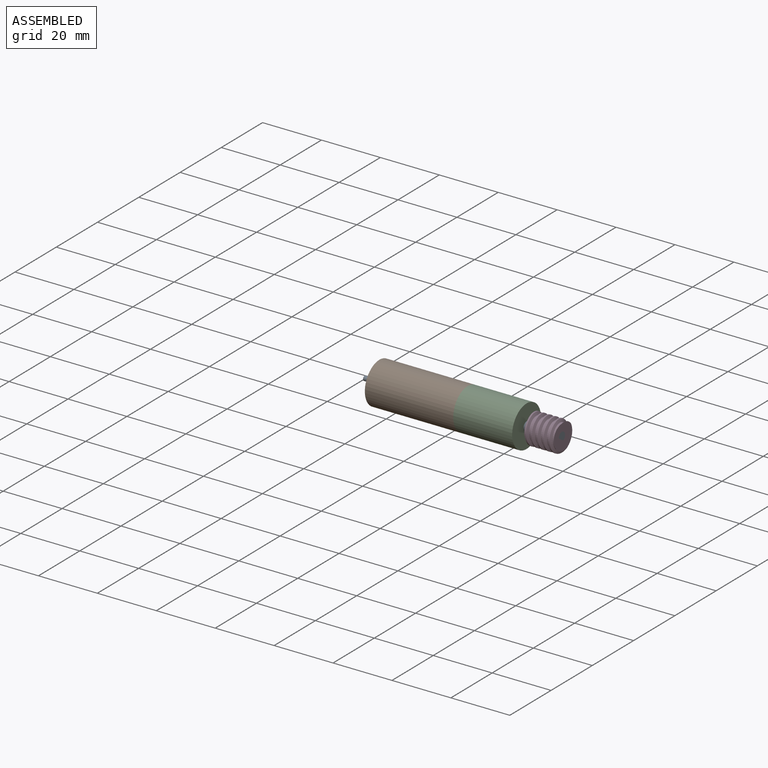
[diagram: assembled view]
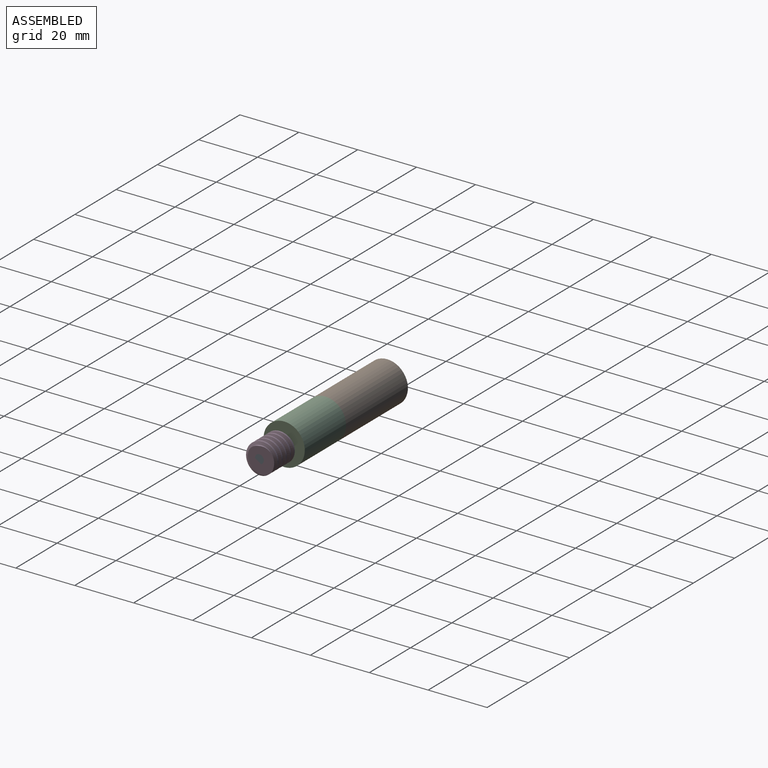
[diagram: assembled view, second angle]
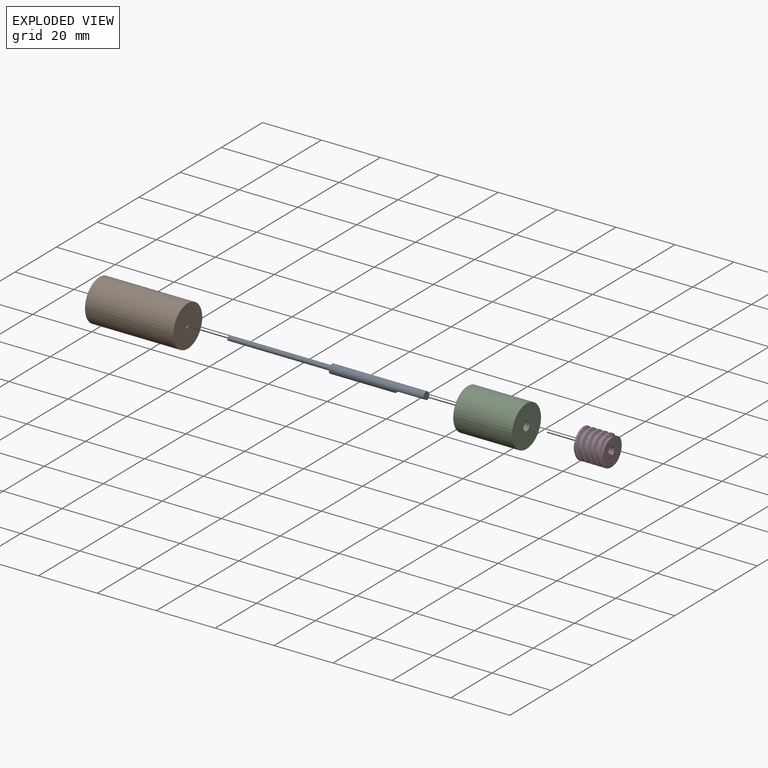
[diagram: exploded view]
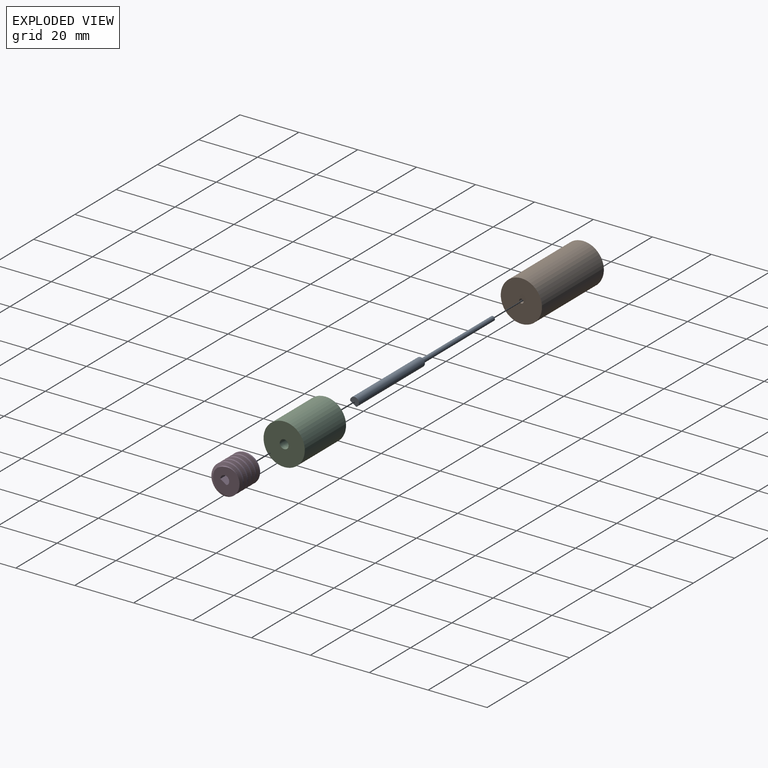
[diagram: exploded view, second angle]
ASSEMBLY  parts=4 mates=3
PART A: 7 faces, bbox 67x3x3 mm
  f0: cylinder r=0.75mm len=35mm, axis (1,0,0), area 164.9mm2, adj f1,f4
  f1: plane 1.5x1.5mm, normal (-1,0,0), area 1.8mm2, adj f0
  f2: cylinder r=1.5mm len=32mm, axis (-1,0,0), area 272.3mm2, adj f3,f4,f5,f6
  f3: plane 3x2.34mm, normal (1,0,0), area 5.9mm2, adj f2,f5
  f4: plane 3x3mm, normal (-1,0,0), area 5.3mm2, adj f0,f2
  f5: plane 10x2.49mm, normal (0,0,1), area 24.9mm2, adj f2,f3,f6
  f6: plane 2.49x0.66mm, normal (1,0,0), area 1.2mm2, adj f2,f5
PART B: 4 faces, bbox 30x14x14 mm
  f0: cylinder r=7mm len=30mm, axis (1,0,0), area 1319.5mm2, adj f1,f2
  f1: plane 14x14mm, normal (-1,0,0), area 152.2mm2, adj f0,f3
  f2: plane 14x14mm, normal (1,0,0), area 152.2mm2, adj f0,f3
  f3: cylinder r=0.75mm len=30mm, axis (1,0,0), area 141.4mm2, adj f1,f2
PART C: 4 faces, bbox 20x14x14 mm
  f0: cylinder r=7mm len=20mm, axis (-1,0,0), area 879.6mm2, adj f1,f2
  f1: plane 14x14mm, normal (1,0,0), area 146.9mm2, adj f0,f3
  f2: plane 14x14mm, normal (-1,0,0), area 146.9mm2, adj f0,f3
  f3: cylinder r=1.5mm len=20mm, axis (-1,0,0), area 188.5mm2, adj f1,f2
PART D: 8 faces, bbox 11.5x10.3x11.9 mm
  f0: bspline ~11.55x11.02mm, area 150.1mm2, adj f1,f3,f6,f7
  f1: cylinder r=5mm len=10mm, axis (1,0,0), area 81.2mm2, adj f0,f2,f6,f7
  f2: bspline ~11.55x11.02mm, area 150.2mm2, adj f1,f3,f6,f7
  f3: cylinder r=4mm len=10mm, axis (1,0,0), area 97.9mm2, adj f0,f2,f6,f7
  f4: cylinder r=1.5mm len=10mm, axis (1,0,0), area 64.9mm2, adj f5,f6,f7
  f5: plane 10x2.49mm, normal (0,0,-1), area 24.9mm2, adj f4,f6,f7
  f6: plane 9.33x9.11mm, normal (1,0,0), area 56.2mm2, adj f0,f1,f2,f3,f4,f5
  f7: plane 9.33x9.11mm, normal (-1,0,0), area 56.2mm2, adj f0,f1,f2,f3,f4,f5
PLACE A rot(axis=(1,0,0),145.9deg) t=(4.64,4.34,-3.07)mm
PLACE B t=(4.64,4.34,-3.07)mm fixed
PLACE C t=(4.64,4.34,-3.07)mm
PLACE D rot(axis=(1,0,0),145.9deg) t=(4.64,4.34,-3.07)mm
MATE revolute A.f0 <-> B.f3  axis (-1,0,0) through (-30.36,4.34,-3.07)mm
MATE fastened B.f3 <-> C.f3  axis (1,0,0) through (4.64,4.34,-3.07)mm
MATE fastened D.f6 <-> A.f3  axis (1,0,0) through (36.64,4.9,-4.46)mm
